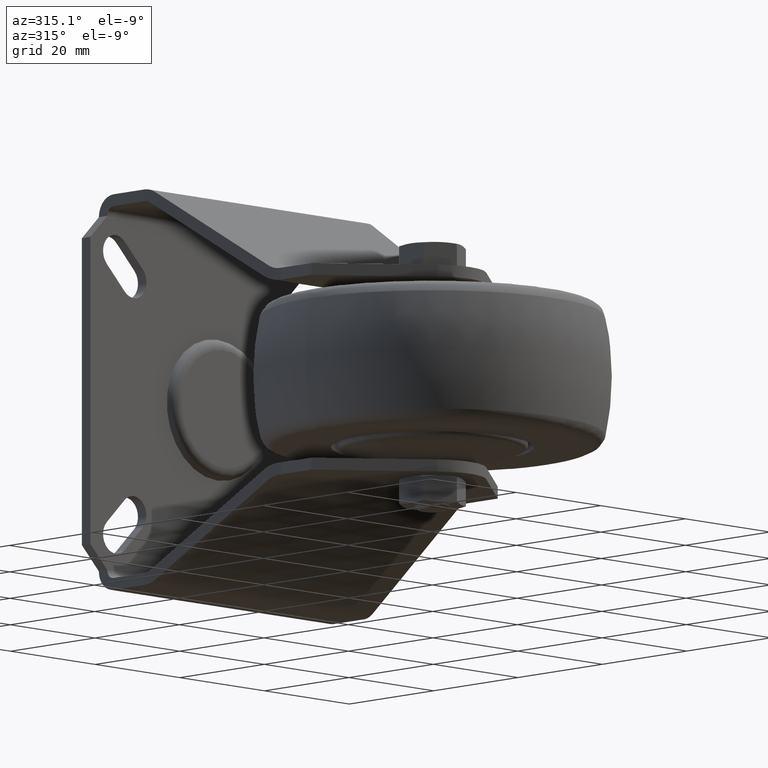
[diagram: clean part render]
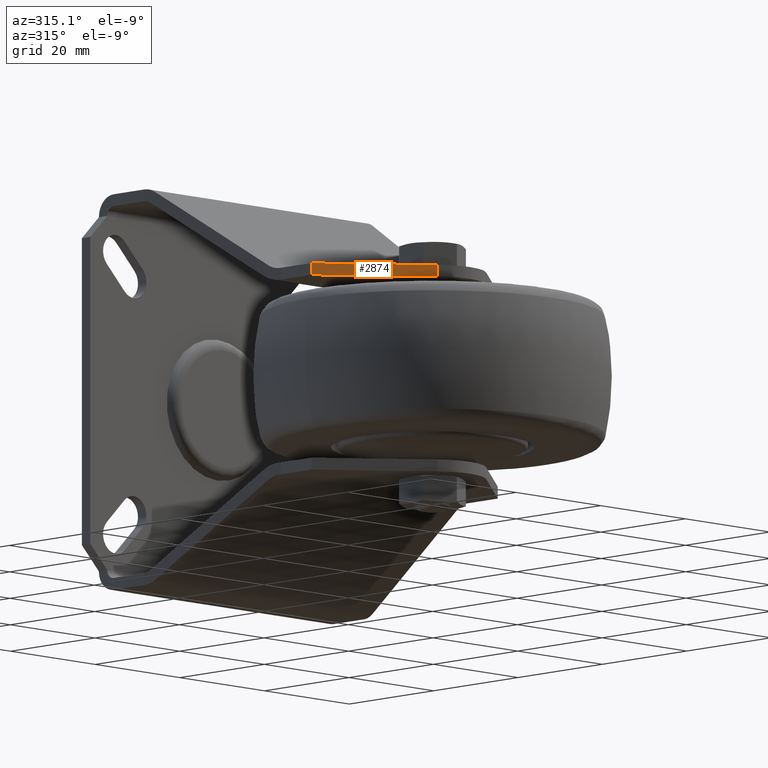
[diagram: same view with one face highlighted and labeled with its STEP entity id]
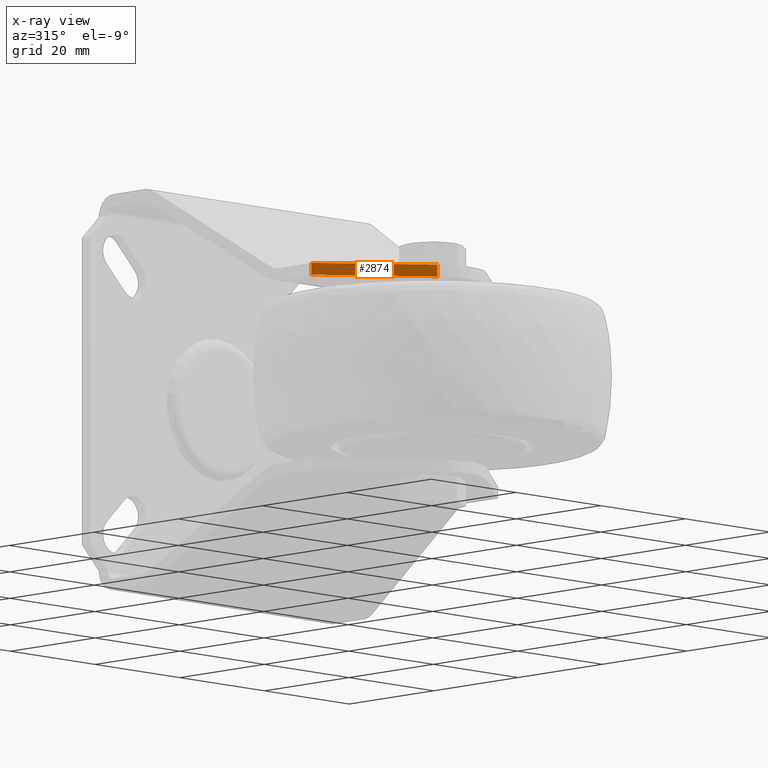
[diagram: x-ray of the same camera — body ghosted, the highlighted face saturated]
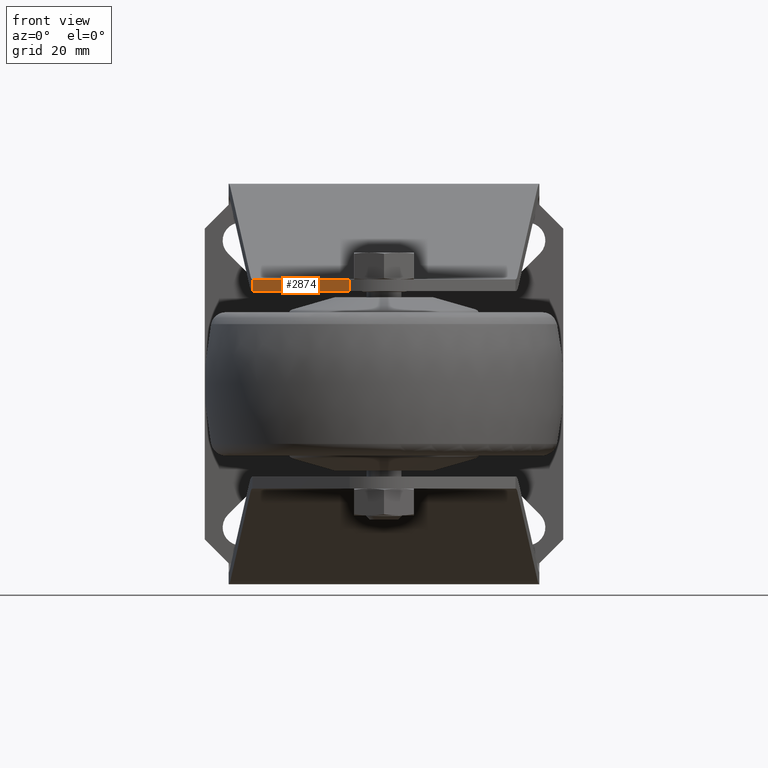
[diagram: same view with one face highlighted and labeled with its STEP entity id]
A machine part, auxiliary view. The second image highlights one B-rep face of the part: STEP entity #2874.
The next image is the same camera in x-ray: the body ghosted, the highlighted face saturated — about 0% of this face is hidden behind the body in this view.
A second angle (front view) of the same face is appended — the face is thin or edge-on in the first view.
In plain terms, the highlighted planar face has unit normal (0.6397, 0.7686, 0).
Its self-contained STEP definition (entity closure, byte-faithful):
#214=LINE('',#5065,#400);
#220=LINE('',#5084,#406);
#266=LINE('',#5226,#452);
#267=LINE('',#5228,#453);
#400=VECTOR('',#4049,1000.);
#406=VECTOR('',#4063,1000.);
#452=VECTOR('',#4205,1000.);
#453=VECTOR('',#4208,1000.);
#633=PLANE('',#3409);
#793=FACE_OUTER_BOUND('',#1007,.T.);
#1007=EDGE_LOOP('',(#2504,#2505,#2506,#2507));
#1439=VERTEX_POINT('',#5062);
#1440=VERTEX_POINT('',#5064);
#1448=VERTEX_POINT('',#5081);
#1449=VERTEX_POINT('',#5083);
#1776=EDGE_CURVE('',#1439,#1440,#214,.T.);
#1785=EDGE_CURVE('',#1448,#1449,#220,.T.);
#1858=EDGE_CURVE('',#1439,#1449,#266,.T.);
#1859=EDGE_CURVE('',#1440,#1448,#267,.T.);
#2504=ORIENTED_EDGE('',*,*,#1858,.T.);
#2505=ORIENTED_EDGE('',*,*,#1785,.F.);
#2506=ORIENTED_EDGE('',*,*,#1859,.F.);
#2507=ORIENTED_EDGE('',*,*,#1776,.F.);
#2874=ADVANCED_FACE('',(#793),#633,.F.);
#3409=AXIS2_PLACEMENT_3D('',#5227,#4206,#4207);
#4049=DIRECTION('',(0.768639128732096,-0.639682647710538,0.));
#4063=DIRECTION('',(-0.768639128732096,0.639682647710538,0.));
#4205=DIRECTION('',(0.,0.,-1.));
#4206=DIRECTION('center_axis',(0.639682647710538,0.768639128732096,0.));
#4207=DIRECTION('ref_axis',(-0.768639128732096,0.639682647710538,0.));
#4208=DIRECTION('',(0.,0.,-1.));
#5062=CARTESIAN_POINT('',(-22.,6.6,17.5));
#5064=CARTESIAN_POINT('',(-5.75714382939484,-6.91775215858886,17.5));
#5065=CARTESIAN_POINT('',(4.96167421371397,-15.8382476809202,17.5));
#5081=CARTESIAN_POINT('',(-5.75714382939484,-6.91775215858886,15.5));
#5083=CARTESIAN_POINT('',(-22.,6.6,15.5));
#5084=CARTESIAN_POINT('',(16.539711028058,-25.4738087235992,15.5));
#5226=CARTESIAN_POINT('',(-22.,6.6,33.5));
#5227=CARTESIAN_POINT('Origin',(-22.,6.6,33.5));
#5228=CARTESIAN_POINT('',(-5.75714382939484,-6.91775215858886,33.5));